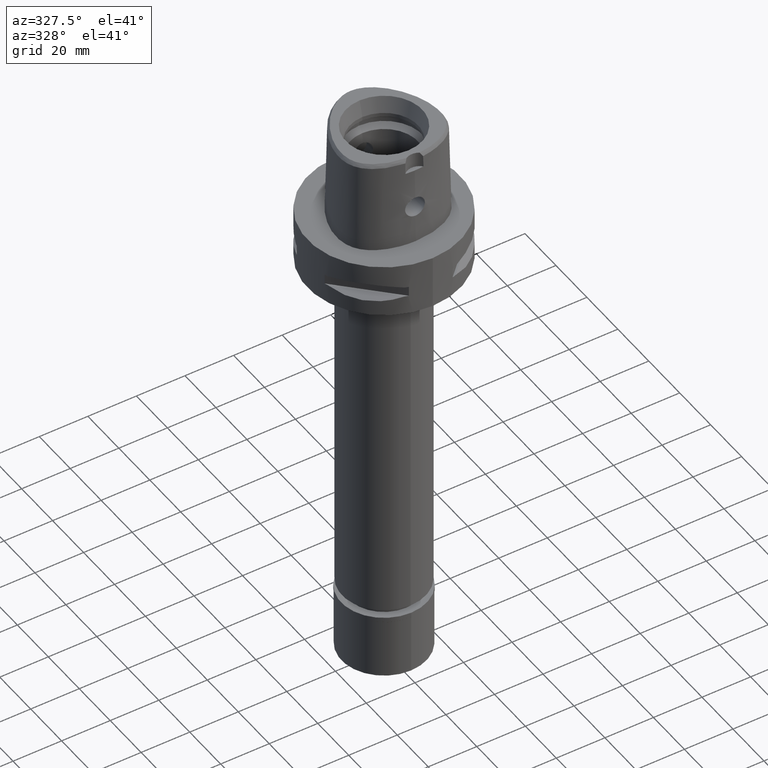
[diagram: clean part render]
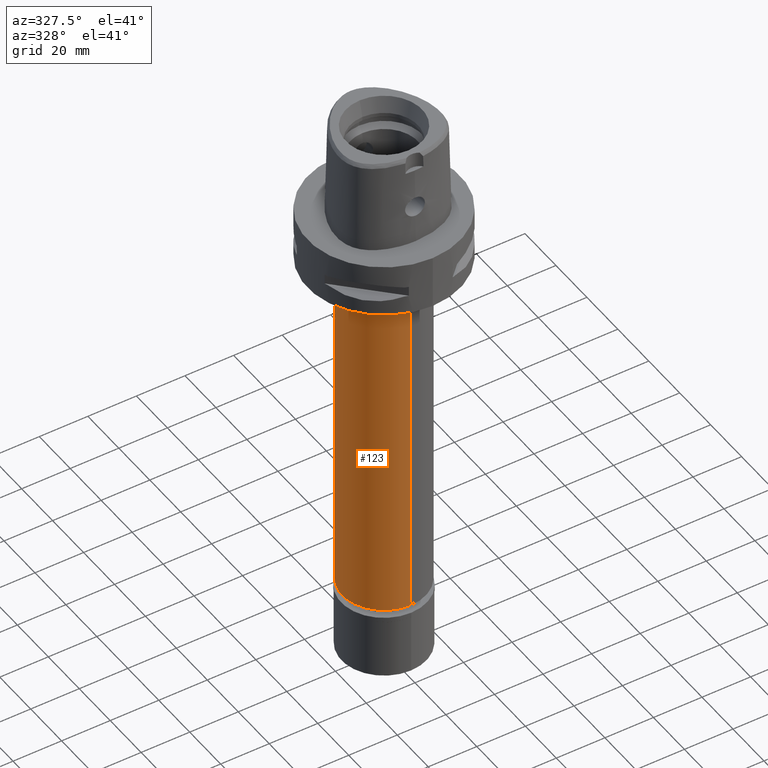
[diagram: same view with one face highlighted and labeled with its STEP entity id]
A machine part, auxiliary view. The second image highlights one B-rep face of the part: STEP entity #123.
In plain terms, the highlighted cylindrical surface (partial cylindrical patch) has radius 17.25 mm, axis along (0, 0, -1).
Its self-contained STEP definition (entity closure, byte-faithful):
#123 = ADVANCED_FACE ( 'NONE', ( #3547 ), #3172, .T. ) ;
#131 = DIRECTION ( 'NONE',  ( 0.0000000000000000000, -1.000000000000000000, 0.0000000000000000000 ) ) ;
#463 = LINE ( 'NONE', #1571, #2491 ) ;
#630 = CARTESIAN_POINT ( 'NONE',  ( 0.0000000000000000000, -17.25000000000000000, -170.1999999999999886 ) ) ;
#664 = ORIENTED_EDGE ( 'NONE', *, *, #1344, .T. ) ;
#816 = VERTEX_POINT ( 'NONE', #1805 ) ;
#846 = ORIENTED_EDGE ( 'NONE', *, *, #3033, .T. ) ;
#969 = CARTESIAN_POINT ( 'NONE',  ( 0.0000000000000000000, 1.340375921666999886E-14, 9.449999999999999289 ) ) ;
#970 = DIRECTION ( 'NONE',  ( 0.0000000000000000000, 0.0000000000000000000, -1.000000000000000000 ) ) ;
#989 = DIRECTION ( 'NONE',  ( 0.0000000000000000000, 1.000000000000000000, 0.0000000000000000000 ) ) ;
#1223 = CIRCLE ( 'NONE', #2339, 17.25000000000000000 ) ;
#1344 = EDGE_CURVE ( 'NONE', #3263, #1952, #3590, .T. ) ;
#1571 = CARTESIAN_POINT ( 'NONE',  ( 0.0000000000000000000, -17.25000000000000000, -32.00000000000000000 ) ) ;
#1784 = VERTEX_POINT ( 'NONE', #4774 ) ;
#1805 = CARTESIAN_POINT ( 'NONE',  ( 0.0000000000000000000, 17.25000000000000000, -32.00000000000000000 ) ) ;
#1952 = VERTEX_POINT ( 'NONE', #630 ) ;
#2139 = EDGE_CURVE ( 'NONE', #1784, #1952, #463, .T. ) ;
#2339 = AXIS2_PLACEMENT_3D ( 'NONE', #4343, #2763, #3958 ) ;
#2491 = VECTOR ( 'NONE', #4660, 1000.000000000000000 ) ;
#2572 = EDGE_CURVE ( 'NONE', #816, #3263, #4672, .T. ) ;
#2650 = ORIENTED_EDGE ( 'NONE', *, *, #2572, .T. ) ;
#2763 = DIRECTION ( 'NONE',  ( 0.0000000000000000000, 0.0000000000000000000, -1.000000000000000000 ) ) ;
#2878 = CARTESIAN_POINT ( 'NONE',  ( 0.0000000000000000000, 1.340375921666999886E-14, -170.1999999999999886 ) ) ;
#3033 = EDGE_CURVE ( 'NONE', #1784, #816, #1223, .T. ) ;
#3104 = AXIS2_PLACEMENT_3D ( 'NONE', #969, #3623, #131 ) ;
#3172 = CYLINDRICAL_SURFACE ( 'NONE', #3104, 17.25000000000000000 ) ;
#3263 = VERTEX_POINT ( 'NONE', #4345 ) ;
#3547 = FACE_OUTER_BOUND ( 'NONE', #4469, .T. ) ;
#3590 = CIRCLE ( 'NONE', #3982, 17.25000000000000000 ) ;
#3623 = DIRECTION ( 'NONE',  ( 0.0000000000000000000, 0.0000000000000000000, -1.000000000000000000 ) ) ;
#3958 = DIRECTION ( 'NONE',  ( 0.0000000000000000000, -1.000000000000000000, 0.0000000000000000000 ) ) ;
#3982 = AXIS2_PLACEMENT_3D ( 'NONE', #2878, #4390, #989 ) ;
#4343 = CARTESIAN_POINT ( 'NONE',  ( 0.0000000000000000000, 0.0000000000000000000, -32.00000000000000000 ) ) ;
#4345 = CARTESIAN_POINT ( 'NONE',  ( 0.0000000000000000000, 17.25000000000000000, -170.1999999999999886 ) ) ;
#4368 = CARTESIAN_POINT ( 'NONE',  ( 0.0000000000000000000, 17.25000000000000000, -32.00000000000000000 ) ) ;
#4390 = DIRECTION ( 'NONE',  ( 0.0000000000000000000, 0.0000000000000000000, 1.000000000000000000 ) ) ;
#4469 = EDGE_LOOP ( 'NONE', ( #664, #4650, #846, #2650 ) ) ;
#4650 = ORIENTED_EDGE ( 'NONE', *, *, #2139, .F. ) ;
#4660 = DIRECTION ( 'NONE',  ( 0.0000000000000000000, 0.0000000000000000000, -1.000000000000000000 ) ) ;
#4672 = LINE ( 'NONE', #4368, #4862 ) ;
#4774 = CARTESIAN_POINT ( 'NONE',  ( 0.0000000000000000000, -17.25000000000000000, -32.00000000000000000 ) ) ;
#4862 = VECTOR ( 'NONE', #970, 1000.000000000000000 ) ;